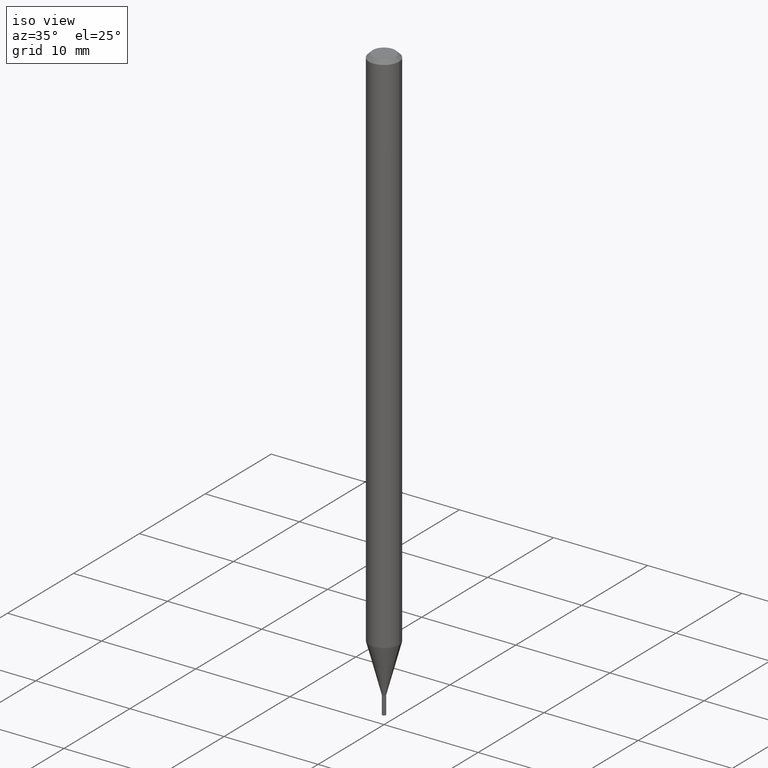
[diagram: clean part render]
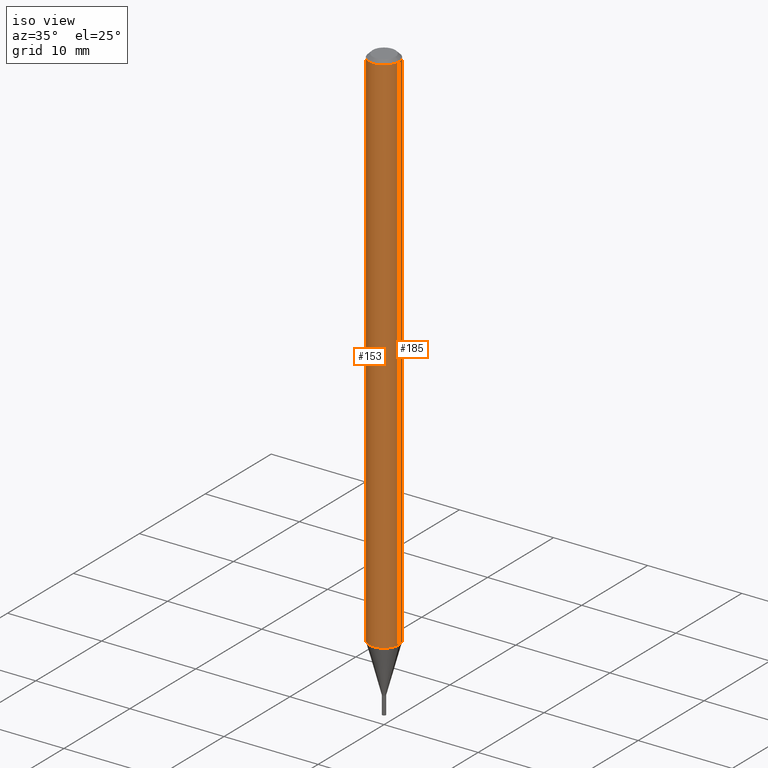
[diagram: same view with one multi-face feature highlighted, each face labeled with its STEP entity id]
A machine part, iso view. The highlighted faces form ONE feature: a constant-radius fillet chain: 2 tangent blend faces with common blend radius 1.5875 mm. The faces share edges in the B-rep.
Their STEP definitions:
[1] entity #153 (Cylinder):
#30 = DIRECTION ( 'NONE',  ( 1.000000000000000000, -6.982962677686266711E-15, 0.000000000000000000 ) ) ;
#43 = AXIS2_PLACEMENT_3D ( 'NONE', #280, #427, #30 ) ;
#74 = AXIS2_PLACEMENT_3D ( 'NONE', #135, #137, #426 ) ;
#76 = DIRECTION ( 'NONE',  ( -2.445468806185136877E-29, 3.491481338843145188E-15, 1.000000000000000000 ) ) ;
#77 = VERTEX_POINT ( 'NONE', #423 ) ;
#92 = FACE_OUTER_BOUND ( 'NONE', #367, .T. ) ;
#93 = EDGE_CURVE ( 'NONE', #128, #120, #285, .T. ) ;
#104 = CIRCLE ( 'NONE', #43, 0.06250000000000000000 ) ;
#114 = ORIENTED_EDGE ( 'NONE', *, *, #170, .F. ) ;
#120 = VERTEX_POINT ( 'NONE', #360 ) ;
#128 = VERTEX_POINT ( 'NONE', #318 ) ;
#135 = CARTESIAN_POINT ( 'NONE',  ( 0.000000000000000000, 0.000000000000000000, 0.000000000000000000 ) ) ;
#137 = DIRECTION ( 'NONE',  ( -2.445468806185136597E-29, 3.491481338843145583E-15, 1.000000000000000000 ) ) ;
#140 = CIRCLE ( 'NONE', #463, 0.06250000000000000000 ) ;
#142 = DIRECTION ( 'NONE',  ( -2.445468806185136877E-29, 3.491481338843145188E-15, 1.000000000000000000 ) ) ;
#151 = VECTOR ( 'NONE', #76, 39.37007874015748143 ) ;
#153 = ADVANCED_FACE ( 'NONE', ( #92 ), #459, .T. ) ;
#155 = EDGE_CURVE ( 'NONE', #128, #77, #140, .T. ) ;
#162 = ORIENTED_EDGE ( 'NONE', *, *, #155, .T. ) ;
#170 = EDGE_CURVE ( 'NONE', #120, #306, #104, .T. ) ;
#173 = LINE ( 'NONE', #326, #151 ) ;
#200 = EDGE_CURVE ( 'NONE', #77, #306, #173, .T. ) ;
#280 = CARTESIAN_POINT ( 'NONE',  ( 3.668203209277705088E-31, -5.237222008264718399E-17, -0.01499999999999999944 ) ) ;
#285 = LINE ( 'NONE', #461, #456 ) ;
#290 = DIRECTION ( 'NONE',  ( 1.000000000000000000, -6.982962677686262766E-15, 0.000000000000000000 ) ) ;
#297 = ORIENTED_EDGE ( 'NONE', *, *, #93, .F. ) ;
#306 = VERTEX_POINT ( 'NONE', #440 ) ;
#308 = ORIENTED_EDGE ( 'NONE', *, *, #200, .T. ) ;
#318 = CARTESIAN_POINT ( 'NONE',  ( -0.06250000000000000000, -7.306081820581300020E-15, -2.219737205583712569 ) ) ;
#326 = CARTESIAN_POINT ( 'NONE',  ( 0.06250000000000000000, -4.364351673553916694E-16, 3.047610484872459871E-30 ) ) ;
#359 = CARTESIAN_POINT ( 'NONE',  ( 5.428298094183532737E-29, -7.750171030431364214E-15, -2.219737205583712569 ) ) ;
#360 = CARTESIAN_POINT ( 'NONE',  ( -0.06250000000000000000, -3.457182415406943227E-15, -0.01499999999999999944 ) ) ;
#367 = EDGE_LOOP ( 'NONE', ( #297, #162, #308, #114 ) ) ;
#420 = DIRECTION ( 'NONE',  ( -2.445468806185136597E-29, 3.491481338843145583E-15, 1.000000000000000000 ) ) ;
#423 = CARTESIAN_POINT ( 'NONE',  ( 0.06250000000000000000, -8.186606197786754305E-15, -2.219737205583712569 ) ) ;
#426 = DIRECTION ( 'NONE',  ( 1.000000000000000000, -6.982962677686266711E-15, 4.876176775795935793E-29 ) ) ;
#427 = DIRECTION ( 'NONE',  ( -2.445468806185136597E-29, 3.491481338843145583E-15, 1.000000000000000000 ) ) ;
#440 = CARTESIAN_POINT ( 'NONE',  ( 0.06250000000000000000, -4.888073874380388472E-16, -0.01499999999999999944 ) ) ;
#456 = VECTOR ( 'NONE', #142, 39.37007874015748143 ) ;
#459 = CYLINDRICAL_SURFACE ( 'NONE', #74, 0.06250000000000000000 ) ;
#461 = CARTESIAN_POINT ( 'NONE',  ( -0.06250000000000000000, 4.440892098500626162E-16, -3.074334431409316114E-30 ) ) ;
#463 = AXIS2_PLACEMENT_3D ( 'NONE', #359, #420, #290 ) ;
[2] entity #185 (Cylinder):
#1 = ORIENTED_EDGE ( 'NONE', *, *, #415, .T. ) ;
#7 = ORIENTED_EDGE ( 'NONE', *, *, #80, .F. ) ;
#19 = DIRECTION ( 'NONE',  ( -2.445468806185136597E-29, 3.491481338843145583E-15, 1.000000000000000000 ) ) ;
#63 = DIRECTION ( 'NONE',  ( 1.000000000000000000, -6.982962677686266711E-15, 4.876176775795935793E-29 ) ) ;
#64 = DIRECTION ( 'NONE',  ( 1.000000000000000000, -6.982962677686266711E-15, 0.000000000000000000 ) ) ;
#76 = DIRECTION ( 'NONE',  ( -2.445468806185136877E-29, 3.491481338843145188E-15, 1.000000000000000000 ) ) ;
#77 = VERTEX_POINT ( 'NONE', #423 ) ;
#80 = EDGE_CURVE ( 'NONE', #306, #120, #282, .T. ) ;
#93 = EDGE_CURVE ( 'NONE', #128, #120, #285, .T. ) ;
#99 = EDGE_LOOP ( 'NONE', ( #1, #275, #7, #138 ) ) ;
#120 = VERTEX_POINT ( 'NONE', #360 ) ;
#125 = DIRECTION ( 'NONE',  ( 1.000000000000000000, -6.982962677686262766E-15, 0.000000000000000000 ) ) ;
#128 = VERTEX_POINT ( 'NONE', #318 ) ;
#138 = ORIENTED_EDGE ( 'NONE', *, *, #200, .F. ) ;
#142 = DIRECTION ( 'NONE',  ( -2.445468806185136877E-29, 3.491481338843145188E-15, 1.000000000000000000 ) ) ;
#145 = CIRCLE ( 'NONE', #408, 0.06250000000000000000 ) ;
#151 = VECTOR ( 'NONE', #76, 39.37007874015748143 ) ;
#171 = CARTESIAN_POINT ( 'NONE',  ( 0.000000000000000000, 0.000000000000000000, 0.000000000000000000 ) ) ;
#173 = LINE ( 'NONE', #326, #151 ) ;
#177 = DIRECTION ( 'NONE',  ( -2.445468806185136597E-29, 3.491481338843145583E-15, 1.000000000000000000 ) ) ;
#181 = AXIS2_PLACEMENT_3D ( 'NONE', #356, #177, #64 ) ;
#185 = ADVANCED_FACE ( 'NONE', ( #209 ), #354, .T. ) ;
#200 = EDGE_CURVE ( 'NONE', #77, #306, #173, .T. ) ;
#209 = FACE_OUTER_BOUND ( 'NONE', #99, .T. ) ;
#273 = AXIS2_PLACEMENT_3D ( 'NONE', #171, #464, #63 ) ;
#275 = ORIENTED_EDGE ( 'NONE', *, *, #93, .T. ) ;
#282 = CIRCLE ( 'NONE', #181, 0.06250000000000000000 ) ;
#285 = LINE ( 'NONE', #461, #456 ) ;
#306 = VERTEX_POINT ( 'NONE', #440 ) ;
#316 = CARTESIAN_POINT ( 'NONE',  ( 5.428298094183532737E-29, -7.750171030431364214E-15, -2.219737205583712569 ) ) ;
#318 = CARTESIAN_POINT ( 'NONE',  ( -0.06250000000000000000, -7.306081820581300020E-15, -2.219737205583712569 ) ) ;
#326 = CARTESIAN_POINT ( 'NONE',  ( 0.06250000000000000000, -4.364351673553916694E-16, 3.047610484872459871E-30 ) ) ;
#354 = CYLINDRICAL_SURFACE ( 'NONE', #273, 0.06250000000000000000 ) ;
#356 = CARTESIAN_POINT ( 'NONE',  ( 3.668203209277705088E-31, -5.237222008264718399E-17, -0.01499999999999999944 ) ) ;
#360 = CARTESIAN_POINT ( 'NONE',  ( -0.06250000000000000000, -3.457182415406943227E-15, -0.01499999999999999944 ) ) ;
#408 = AXIS2_PLACEMENT_3D ( 'NONE', #316, #19, #125 ) ;
#415 = EDGE_CURVE ( 'NONE', #77, #128, #145, .T. ) ;
#423 = CARTESIAN_POINT ( 'NONE',  ( 0.06250000000000000000, -8.186606197786754305E-15, -2.219737205583712569 ) ) ;
#440 = CARTESIAN_POINT ( 'NONE',  ( 0.06250000000000000000, -4.888073874380388472E-16, -0.01499999999999999944 ) ) ;
#456 = VECTOR ( 'NONE', #142, 39.37007874015748143 ) ;
#461 = CARTESIAN_POINT ( 'NONE',  ( -0.06250000000000000000, 4.440892098500626162E-16, -3.074334431409316114E-30 ) ) ;
#464 = DIRECTION ( 'NONE',  ( -2.445468806185136597E-29, 3.491481338843145583E-15, 1.000000000000000000 ) ) ;